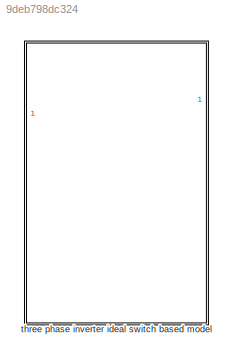
MODEL slx_9deb798dc324
KIND library
CONFIG AbsTol = auto
CONFIG EnableMultiTasking = off
CONFIG FixedStep = auto
CONFIG MaxStep = auto
CONFIG MinStep = auto
CONFIG RelTol = 1e-3
CONFIG SampleTimeConstraint = Unconstrained
CONFIG SolverName = VariableStepAuto
CONFIG StartTime = 0.0
CONFIG StopTime = 10.0
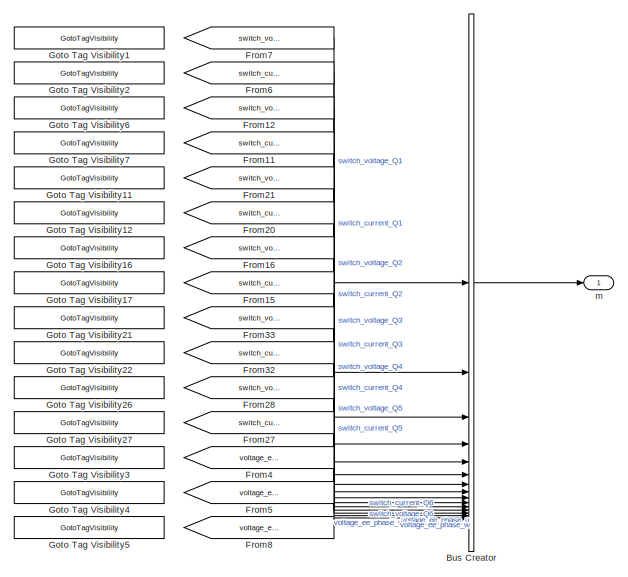
[diagram: three phase inverter ideal switch based model - part 1/4, middle right region]
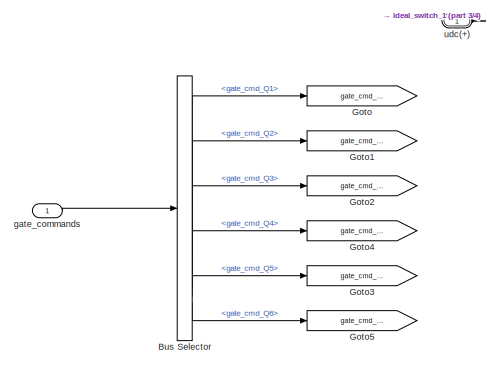
[diagram: three phase inverter ideal switch based model - part 2/4, middle left region]
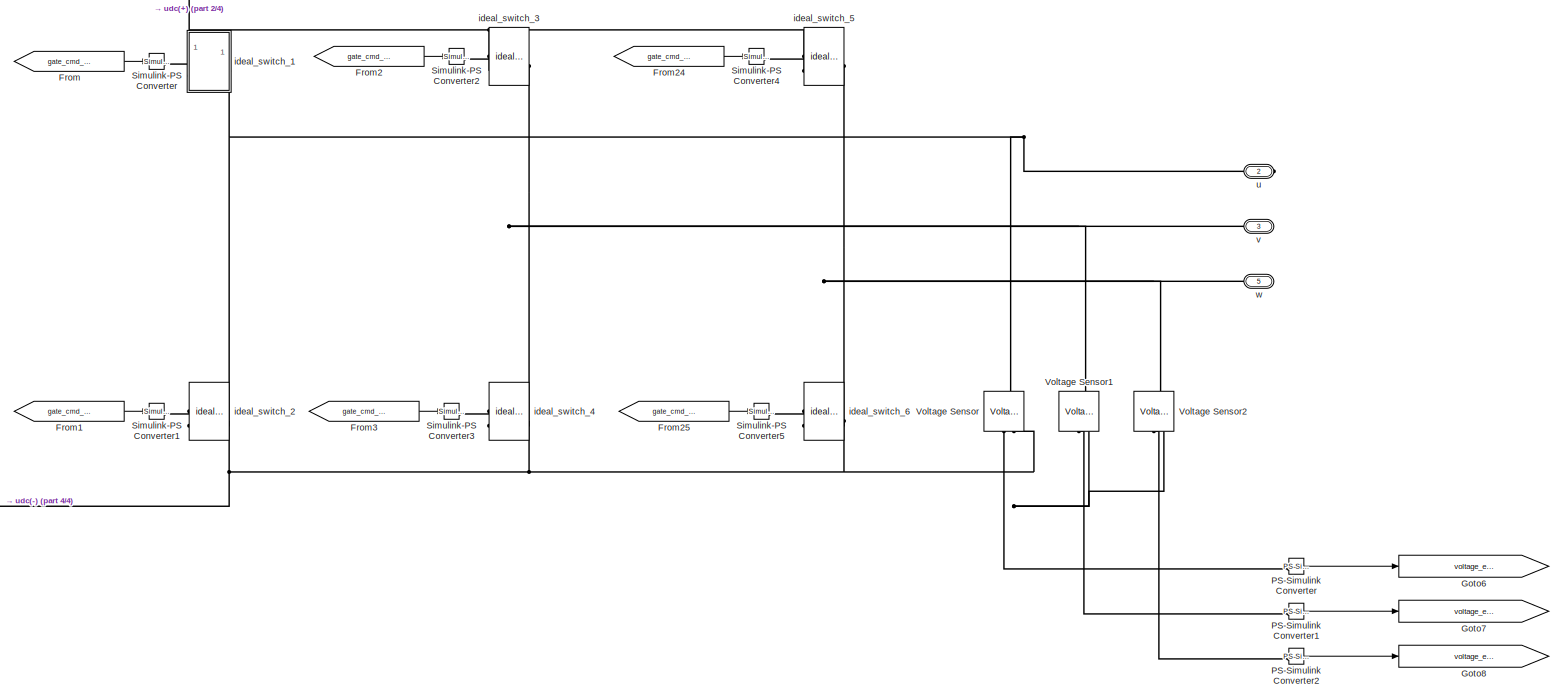
[diagram: three phase inverter ideal switch based model - part 3/4, center side, full height]
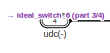
[diagram: three phase inverter ideal switch based model - part 4/4, bottom left region]
BLOCK [SubSystem] three phase inverter ideal switch based model
BLOCK [BusCreator] three phase inverter ideal switch based model/Bus Creator
  DisplayOption = bar
  InheritFromInputs = on
  Inputs = 15
BLOCK [BusSelector] three phase inverter ideal switch based model/Bus Selector
  OutputSignals = gate_cmd_Q1,gate_cmd_Q2,gate_cmd_Q3,gate_cmd_Q4,gate_cmd_Q5,gate_cmd_Q6
BLOCK [From] three phase inverter ideal switch based model/From
  GotoTag = gate_cmd_Q1
BLOCK [From] three phase inverter ideal switch based model/From1
  GotoTag = gate_cmd_Q2
BLOCK [From] three phase inverter ideal switch based model/From11
  GotoTag = switch_current_Q2
  TagVisibility = scoped
BLOCK [From] three phase inverter ideal switch based model/From12
  GotoTag = switch_voltage_Q2
  TagVisibility = scoped
BLOCK [From] three phase inverter ideal switch based model/From15
  GotoTag = switch_current_Q4
  TagVisibility = scoped
BLOCK [From] three phase inverter ideal switch based model/From16
  GotoTag = switch_voltage_Q4
  TagVisibility = scoped
BLOCK [From] three phase inverter ideal switch based model/From2
  GotoTag = gate_cmd_Q3
BLOCK [From] three phase inverter ideal switch based model/From20
  GotoTag = switch_current_Q3
  TagVisibility = scoped
BLOCK [From] three phase inverter ideal switch based model/From21
  GotoTag = switch_voltage_Q3
  TagVisibility = scoped
BLOCK [From] three phase inverter ideal switch based model/From24
  GotoTag = gate_cmd_Q5
BLOCK [From] three phase inverter ideal switch based model/From25
  GotoTag = gate_cmd_Q6
BLOCK [From] three phase inverter ideal switch based model/From27
  GotoTag = switch_current_Q6
  TagVisibility = scoped
BLOCK [From] three phase inverter ideal switch based model/From28
  GotoTag = switch_voltage_Q6
  TagVisibility = scoped
BLOCK [From] three phase inverter ideal switch based model/From3
  GotoTag = gate_cmd_Q4
BLOCK [From] three phase inverter ideal switch based model/From32
  GotoTag = switch_current_Q5
  TagVisibility = scoped
BLOCK [From] three phase inverter ideal switch based model/From33
  GotoTag = switch_voltage_Q5
  TagVisibility = scoped
BLOCK [From] three phase inverter ideal switch based model/From4
  GotoTag = voltage_ee_phase_u
  TagVisibility = scoped
BLOCK [From] three phase inverter ideal switch based model/From5
  GotoTag = voltage_ee_phase_v
  TagVisibility = scoped
BLOCK [From] three phase inverter ideal switch based model/From6
  GotoTag = switch_current_Q1
BLOCK [From] three phase inverter ideal switch based model/From7
  GotoTag = switch_voltage_Q1
BLOCK [From] three phase inverter ideal switch based model/From8
  GotoTag = voltage_ee_phase_w
  TagVisibility = scoped
BLOCK [Goto] three phase inverter ideal switch based model/Goto
  GotoTag = gate_cmd_Q1
BLOCK [GotoTagVisibility] three phase inverter ideal switch based model/Goto Tag Visibility1
  GotoTag = switch_voltage_Q1
BLOCK [GotoTagVisibility] three phase inverter ideal switch based model/Goto Tag Visibility11
  GotoTag = switch_voltage_Q3
BLOCK [GotoTagVisibility] three phase inverter ideal switch based model/Goto Tag Visibility12
  GotoTag = switch_current_Q3
BLOCK [GotoTagVisibility] three phase inverter ideal switch based model/Goto Tag Visibility16
  GotoTag = switch_voltage_Q4
BLOCK [GotoTagVisibility] three phase inverter ideal switch based model/Goto Tag Visibility17
  GotoTag = switch_current_Q4
BLOCK [GotoTagVisibility] three phase inverter ideal switch based model/Goto Tag Visibility2
  GotoTag = switch_current_Q1
BLOCK [GotoTagVisibility] three phase inverter ideal switch based model/Goto Tag Visibility21
  GotoTag = switch_voltage_Q5
BLOCK [GotoTagVisibility] three phase inverter ideal switch based model/Goto Tag Visibility22
  GotoTag = switch_current_Q5
BLOCK [GotoTagVisibility] three phase inverter ideal switch based model/Goto Tag Visibility26
  GotoTag = switch_voltage_Q6
BLOCK [GotoTagVisibility] three phase inverter ideal switch based model/Goto Tag Visibility27
  GotoTag = switch_current_Q6
BLOCK [GotoTagVisibility] three phase inverter ideal switch based model/Goto Tag Visibility3
  GotoTag = voltage_ee_phase_u
BLOCK [GotoTagVisibility] three phase inverter ideal switch based model/Goto Tag Visibility4
  GotoTag = voltage_ee_phase_v
BLOCK [GotoTagVisibility] three phase inverter ideal switch based model/Goto Tag Visibility5
  GotoTag = voltage_ee_phase_w
BLOCK [GotoTagVisibility] three phase inverter ideal switch based model/Goto Tag Visibility6
  GotoTag = switch_voltage_Q2
BLOCK [GotoTagVisibility] three phase inverter ideal switch based model/Goto Tag Visibility7
  GotoTag = switch_current_Q2
BLOCK [Goto] three phase inverter ideal switch based model/Goto1
  GotoTag = gate_cmd_Q2
BLOCK [Goto] three phase inverter ideal switch based model/Goto2
  GotoTag = gate_cmd_Q3
BLOCK [Goto] three phase inverter ideal switch based model/Goto3
  GotoTag = gate_cmd_Q5
BLOCK [Goto] three phase inverter ideal switch based model/Goto4
  GotoTag = gate_cmd_Q4
BLOCK [Goto] three phase inverter ideal switch based model/Goto5
  GotoTag = gate_cmd_Q6
BLOCK [Goto] three phase inverter ideal switch based model/Goto6
  GotoTag = voltage_ee_phase_u
  TagVisibility = scoped
BLOCK [Goto] three phase inverter ideal switch based model/Goto7
  GotoTag = voltage_ee_phase_v
  TagVisibility = scoped
BLOCK [Goto] three phase inverter ideal switch based model/Goto8
  GotoTag = voltage_ee_phase_w
  TagVisibility = scoped
BLOCK [Reference] three phase inverter ideal switch based model/PS-Simulink Converter  REF=nesl_utility/PS-Simulink
Converter
  SourceBlock = nesl_utility/PS-Simulink\nConverter
  SourceType = PS-Simulink\nConverter
BLOCK [Reference] three phase inverter ideal switch based model/PS-Simulink Converter1  REF=nesl_utility/PS-Simulink
Converter
  SourceBlock = nesl_utility/PS-Simulink\nConverter
  SourceType = PS-Simulink\nConverter
BLOCK [Reference] three phase inverter ideal switch based model/PS-Simulink Converter2  REF=nesl_utility/PS-Simulink
Converter
  SourceBlock = nesl_utility/PS-Simulink\nConverter
  SourceType = PS-Simulink\nConverter
BLOCK [Reference] three phase inverter ideal switch based model/Simulink-PS Converter  REF=nesl_utility/Simulink-PS
Converter
  SourceBlock = nesl_utility/Simulink-PS\nConverter
  SourceType = Simulink-PS\nConverter
BLOCK [Reference] three phase inverter ideal switch based model/Simulink-PS Converter1  REF=nesl_utility/Simulink-PS
Converter
  SourceBlock = nesl_utility/Simulink-PS\nConverter
  SourceType = Simulink-PS\nConverter
BLOCK [Reference] three phase inverter ideal switch based model/Simulink-PS Converter2  REF=nesl_utility/Simulink-PS
Converter
  SourceBlock = nesl_utility/Simulink-PS\nConverter
  SourceType = Simulink-PS\nConverter
BLOCK [Reference] three phase inverter ideal switch based model/Simulink-PS Converter3  REF=nesl_utility/Simulink-PS
Converter
  SourceBlock = nesl_utility/Simulink-PS\nConverter
  SourceType = Simulink-PS\nConverter
BLOCK [Reference] three phase inverter ideal switch based model/Simulink-PS Converter4  REF=nesl_utility/Simulink-PS
Converter
  SourceBlock = nesl_utility/Simulink-PS\nConverter
  SourceType = Simulink-PS\nConverter
BLOCK [Reference] three phase inverter ideal switch based model/Simulink-PS Converter5  REF=nesl_utility/Simulink-PS
Converter
  SourceBlock = nesl_utility/Simulink-PS\nConverter
  SourceType = Simulink-PS\nConverter
BLOCK [Reference] three phase inverter ideal switch based model/Voltage Sensor  REF=fl_lib/Electrical/Electrical Sensors/Voltage Sensor
  NameLocation = right
  SourceBlock = fl_lib/Electrical/Electrical Sensors/Voltage Sensor
  SourceType = Voltage Sensor
BLOCK [Reference] three phase inverter ideal switch based model/Voltage Sensor1  REF=fl_lib/Electrical/Electrical Sensors/Voltage Sensor
  NameLocation = right
  SourceBlock = fl_lib/Electrical/Electrical Sensors/Voltage Sensor
  SourceType = Voltage Sensor
BLOCK [Reference] three phase inverter ideal switch based model/Voltage Sensor2  REF=fl_lib/Electrical/Electrical Sensors/Voltage Sensor
  NameLocation = right
  SourceBlock = fl_lib/Electrical/Electrical Sensors/Voltage Sensor
  SourceType = Voltage Sensor
BLOCK [Inport] three phase inverter ideal switch based model/gate_commands
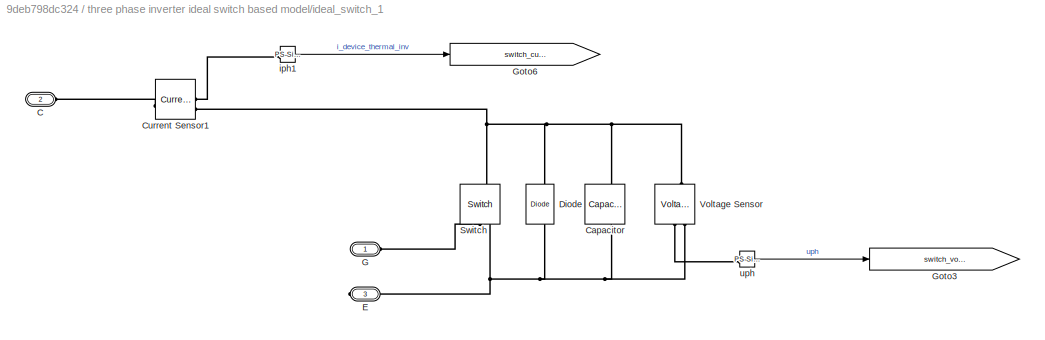
BLOCK [SubSystem] three phase inverter ideal switch based model/ideal_switch_1
  NameLocation = right
  PortSchema = {"entries":[{"content":{"sides":[{"content":{"connectorIds":["LConn1"]},"type":"ConnectorPlacement.EquallySpacedRectSide","uuid":"9277da8d-d460-43e6-8478-dd662f15d226"},{"content":{"connectorIds":[],"side":"RIGHT"},"type":"ConnectorPlacement.EquallySpacedRectSide","uuid":"a7ece396-f1d9-4f4f-a05b-db1fc65d6e1d"},{"content":{"connectorIds":["LConn2"],"side":"TOP"},"type":"ConnectorPlacement.EquallySp...<+397ch>
BLOCK [PMIOPort] three phase inverter ideal switch based model/ideal_switch_1/C
  Port = 2
  Side = Left
BLOCK [Reference] three phase inverter ideal switch based model/ideal_switch_1/Capacitor  REF=fl_lib/Electrical/Electrical Elements/Capacitor
  NameLocation = left
  SourceBlock = fl_lib/Electrical/Electrical Elements/Capacitor
  SourceType = Capacitor
BLOCK [Reference] three phase inverter ideal switch based model/ideal_switch_1/Current Sensor1  REF=fl_lib/Electrical/Electrical Sensors/Current Sensor
  SourceBlock = fl_lib/Electrical/Electrical Sensors/Current Sensor
  SourceType = Current Sensor
BLOCK [Reference] three phase inverter ideal switch based model/ideal_switch_1/Diode  REF=fl_lib/Electrical/Electrical Elements/Diode
  NameLocation = right
  SourceBlock = fl_lib/Electrical/Electrical Elements/Diode
  SourceType = Diode
BLOCK [PMIOPort] three phase inverter ideal switch based model/ideal_switch_1/E
  Port = 3
  Side = Right
BLOCK [PMIOPort] three phase inverter ideal switch based model/ideal_switch_1/G
  NameLocation = top
  Side = Left
BLOCK [Goto] three phase inverter ideal switch based model/ideal_switch_1/Goto3
  GotoTag = switch_voltage_Q1
  TagVisibility = scoped
BLOCK [Goto] three phase inverter ideal switch based model/ideal_switch_1/Goto6
  GotoTag = switch_current_Q1
  TagVisibility = scoped
BLOCK [Reference] three phase inverter ideal switch based model/ideal_switch_1/Switch  REF=fl_lib/Electrical/Electrical Elements/Switch
  NameLocation = right
  SourceBlock = fl_lib/Electrical/Electrical Elements/Switch
  SourceType = Switch
BLOCK [Reference] three phase inverter ideal switch based model/ideal_switch_1/Voltage Sensor  REF=fl_lib/Electrical/Electrical Sensors/Voltage Sensor
  NameLocation = right
  SourceBlock = fl_lib/Electrical/Electrical Sensors/Voltage Sensor
  SourceType = Voltage Sensor
BLOCK [Reference] three phase inverter ideal switch based model/ideal_switch_1/iph1  REF=nesl_utility/PS-Simulink
Converter
  SourceBlock = nesl_utility/PS-Simulink\nConverter
  SourceType = PS-Simulink\nConverter
BLOCK [Reference] three phase inverter ideal switch based model/ideal_switch_1/uph  REF=nesl_utility/PS-Simulink
Converter
  SourceBlock = nesl_utility/PS-Simulink\nConverter
  SourceType = PS-Simulink\nConverter
BLOCK [Reference] three phase inverter ideal switch based model/ideal_switch_2  REF=$bdroot/three phase inverter ideal switch based model/ideal_switch_1
  NameLocation = right
  SourceBlock = $bdroot/three phase inverter ideal switch based model/ideal_switch_1
  SourceType = SubSystem
BLOCK [Reference] three phase inverter ideal switch based model/ideal_switch_3  REF=$bdroot/three phase inverter ideal switch based model/ideal_switch_1
  NameLocation = right
  SourceBlock = $bdroot/three phase inverter ideal switch based model/ideal_switch_1
  SourceType = SubSystem
BLOCK [Reference] three phase inverter ideal switch based model/ideal_switch_4  REF=$bdroot/three phase inverter ideal switch based model/ideal_switch_1
  NameLocation = right
  SourceBlock = $bdroot/three phase inverter ideal switch based model/ideal_switch_1
  SourceType = SubSystem
BLOCK [Reference] three phase inverter ideal switch based model/ideal_switch_5  REF=$bdroot/three phase inverter ideal switch based model/ideal_switch_1
  NameLocation = right
  SourceBlock = $bdroot/three phase inverter ideal switch based model/ideal_switch_1
  SourceType = SubSystem
BLOCK [Reference] three phase inverter ideal switch based model/ideal_switch_6  REF=$bdroot/three phase inverter ideal switch based model/ideal_switch_1
  NameLocation = right
  SourceBlock = $bdroot/three phase inverter ideal switch based model/ideal_switch_1
  SourceType = SubSystem
BLOCK [Outport] three phase inverter ideal switch based model/m
BLOCK [PMIOPort] three phase inverter ideal switch based model/u
  Port = 2
  Side = Right
BLOCK [PMIOPort] three phase inverter ideal switch based model/udc(+)
  Side = Left
BLOCK [PMIOPort] three phase inverter ideal switch based model/udc(-)
  Port = 4
  Side = Left
BLOCK [PMIOPort] three phase inverter ideal switch based model/v
  Port = 3
  Side = Right
BLOCK [PMIOPort] three phase inverter ideal switch based model/w
  Port = 5
  Side = Right
LINE three phase inverter ideal switch based model/Bus Creator:1 -> three phase inverter ideal switch based model/m:1
LINE three phase inverter ideal switch based model/Bus Selector:1 -> three phase inverter ideal switch based model/Goto:1
LINE three phase inverter ideal switch based model/Bus Selector:2 -> three phase inverter ideal switch based model/Goto1:1
LINE three phase inverter ideal switch based model/Bus Selector:3 -> three phase inverter ideal switch based model/Goto2:1
LINE three phase inverter ideal switch based model/Bus Selector:4 -> three phase inverter ideal switch based model/Goto4:1
LINE three phase inverter ideal switch based model/Bus Selector:5 -> three phase inverter ideal switch based model/Goto3:1
LINE three phase inverter ideal switch based model/Bus Selector:6 -> three phase inverter ideal switch based model/Goto5:1
LINE three phase inverter ideal switch based model/From11:1 -> three phase inverter ideal switch based model/Bus Creator:4
LINE three phase inverter ideal switch based model/From12:1 -> three phase inverter ideal switch based model/Bus Creator:3
LINE three phase inverter ideal switch based model/From15:1 -> three phase inverter ideal switch based model/Bus Creator:8
LINE three phase inverter ideal switch based model/From16:1 -> three phase inverter ideal switch based model/Bus Creator:7
LINE three phase inverter ideal switch based model/From1:1 -> three phase inverter ideal switch based model/Simulink-PS Converter1:1
LINE three phase inverter ideal switch based model/From20:1 -> three phase inverter ideal switch based model/Bus Creator:6
LINE three phase inverter ideal switch based model/From21:1 -> three phase inverter ideal switch based model/Bus Creator:5
LINE three phase inverter ideal switch based model/From24:1 -> three phase inverter ideal switch based model/Simulink-PS Converter4:1
LINE three phase inverter ideal switch based model/From25:1 -> three phase inverter ideal switch based model/Simulink-PS Converter5:1
LINE three phase inverter ideal switch based model/From27:1 -> three phase inverter ideal switch based model/Bus Creator:12
LINE three phase inverter ideal switch based model/From28:1 -> three phase inverter ideal switch based model/Bus Creator:11
LINE three phase inverter ideal switch based model/From2:1 -> three phase inverter ideal switch based model/Simulink-PS Converter2:1
LINE three phase inverter ideal switch based model/From32:1 -> three phase inverter ideal switch based model/Bus Creator:10
LINE three phase inverter ideal switch based model/From33:1 -> three phase inverter ideal switch based model/Bus Creator:9
LINE three phase inverter ideal switch based model/From3:1 -> three phase inverter ideal switch based model/Simulink-PS Converter3:1
LINE three phase inverter ideal switch based model/From4:1 -> three phase inverter ideal switch based model/Bus Creator:13
LINE three phase inverter ideal switch based model/From5:1 -> three phase inverter ideal switch based model/Bus Creator:14
LINE three phase inverter ideal switch based model/From6:1 -> three phase inverter ideal switch based model/Bus Creator:2
LINE three phase inverter ideal switch based model/From7:1 -> three phase inverter ideal switch based model/Bus Creator:1
LINE three phase inverter ideal switch based model/From8:1 -> three phase inverter ideal switch based model/Bus Creator:15
LINE three phase inverter ideal switch based model/From:1 -> three phase inverter ideal switch based model/Simulink-PS Converter:1
LINE three phase inverter ideal switch based model/PS-Simulink Converter1:1 -> three phase inverter ideal switch based model/Goto7:1
LINE three phase inverter ideal switch based model/PS-Simulink Converter2:1 -> three phase inverter ideal switch based model/Goto8:1
LINE three phase inverter ideal switch based model/PS-Simulink Converter:1 -> three phase inverter ideal switch based model/Goto6:1
LINE three phase inverter ideal switch based model/gate_commands:1 -> three phase inverter ideal switch based model/Bus Selector:1
LINE three phase inverter ideal switch based model/ideal_switch_1/iph1:1 -> three phase inverter ideal switch based model/ideal_switch_1/Goto6:1
LINE three phase inverter ideal switch based model/ideal_switch_1/uph:1 -> three phase inverter ideal switch based model/ideal_switch_1/Goto3:1
PLINE three phase inverter ideal switch based model/PS-Simulink Converter1:LConn1 -- three phase inverter ideal switch based model/Voltage Sensor1:RConn1
PLINE three phase inverter ideal switch based model/PS-Simulink Converter2:LConn1 -- three phase inverter ideal switch based model/Voltage Sensor2:RConn1
PLINE three phase inverter ideal switch based model/PS-Simulink Converter:LConn1 -- three phase inverter ideal switch based model/Voltage Sensor:RConn1
PLINE three phase inverter ideal switch based model/Simulink-PS Converter1:RConn1 -- three phase inverter ideal switch based model/ideal_switch_2:LConn1
PLINE three phase inverter ideal switch based model/Simulink-PS Converter2:RConn1 -- three phase inverter ideal switch based model/ideal_switch_3:LConn1
PLINE three phase inverter ideal switch based model/Simulink-PS Converter3:RConn1 -- three phase inverter ideal switch based model/ideal_switch_4:LConn1
PLINE three phase inverter ideal switch based model/Simulink-PS Converter4:RConn1 -- three phase inverter ideal switch based model/ideal_switch_5:LConn1
PLINE three phase inverter ideal switch based model/Simulink-PS Converter5:RConn1 -- three phase inverter ideal switch based model/ideal_switch_6:LConn1
PLINE three phase inverter ideal switch based model/Simulink-PS Converter:RConn1 -- three phase inverter ideal switch based model/ideal_switch_1:LConn1
PNET net1: three phase inverter ideal switch based model/Voltage Sensor1:LConn1 -- three phase inverter ideal switch based model/ideal_switch_3:RConn1 -- three phase inverter ideal switch based model/ideal_switch_4:LConn2 -- three phase inverter ideal switch based model/v:RConn1
PNET net2: three phase inverter ideal switch based model/Voltage Sensor1:RConn2 -- three phase inverter ideal switch based model/Voltage Sensor2:RConn2 -- three phase inverter ideal switch based model/Voltage Sensor:RConn2 -- three phase inverter ideal switch based model/ideal_switch_2:RConn1 -- three phase inverter ideal switch based model/ideal_switch_4:RConn1 -- three phase inverter ideal switch based model/ideal_switch_6:RConn1 -- three phase inverter ideal switch based model/udc(-):RConn1
PNET net3: three phase inverter ideal switch based model/Voltage Sensor2:LConn1 -- three phase inverter ideal switch based model/ideal_switch_5:RConn1 -- three phase inverter ideal switch based model/ideal_switch_6:LConn2 -- three phase inverter ideal switch based model/w:RConn1
PNET net4: three phase inverter ideal switch based model/Voltage Sensor:LConn1 -- three phase inverter ideal switch based model/ideal_switch_1:RConn1 -- three phase inverter ideal switch based model/ideal_switch_2:LConn2 -- three phase inverter ideal switch based model/u:RConn1
PLINE three phase inverter ideal switch based model/ideal_switch_1/C:RConn1 -- three phase inverter ideal switch based model/ideal_switch_1/Current Sensor1:LConn1
PNET net5: three phase inverter ideal switch based model/ideal_switch_1/Capacitor:LConn1 -- three phase inverter ideal switch based model/ideal_switch_1/Current Sensor1:RConn2 -- three phase inverter ideal switch based model/ideal_switch_1/Diode:RConn1 -- three phase inverter ideal switch based model/ideal_switch_1/Switch:LConn1 -- three phase inverter ideal switch based model/ideal_switch_1/Voltage Sensor:LConn1
PNET net6: three phase inverter ideal switch based model/ideal_switch_1/Capacitor:RConn1 -- three phase inverter ideal switch based model/ideal_switch_1/Diode:LConn1 -- three phase inverter ideal switch based model/ideal_switch_1/E:RConn1 -- three phase inverter ideal switch based model/ideal_switch_1/Switch:RConn2 -- three phase inverter ideal switch based model/ideal_switch_1/Voltage Sensor:RConn2
PLINE three phase inverter ideal switch based model/ideal_switch_1/Current Sensor1:RConn1 -- three phase inverter ideal switch based model/ideal_switch_1/iph1:LConn1
PLINE three phase inverter ideal switch based model/ideal_switch_1/G:RConn1 -- three phase inverter ideal switch based model/ideal_switch_1/Switch:RConn1
PLINE three phase inverter ideal switch based model/ideal_switch_1/Voltage Sensor:RConn1 -- three phase inverter ideal switch based model/ideal_switch_1/uph:LConn1
PNET net7: three phase inverter ideal switch based model/ideal_switch_1:LConn2 -- three phase inverter ideal switch based model/ideal_switch_3:LConn2 -- three phase inverter ideal switch based model/ideal_switch_5:LConn2 -- three phase inverter ideal switch based model/udc(+):RConn1
note: PNET lines group multi-terminal physical nets as a canonical sorted terminal list (undirected conserving connections); 2-terminal nets keep the pairwise PLINE form
